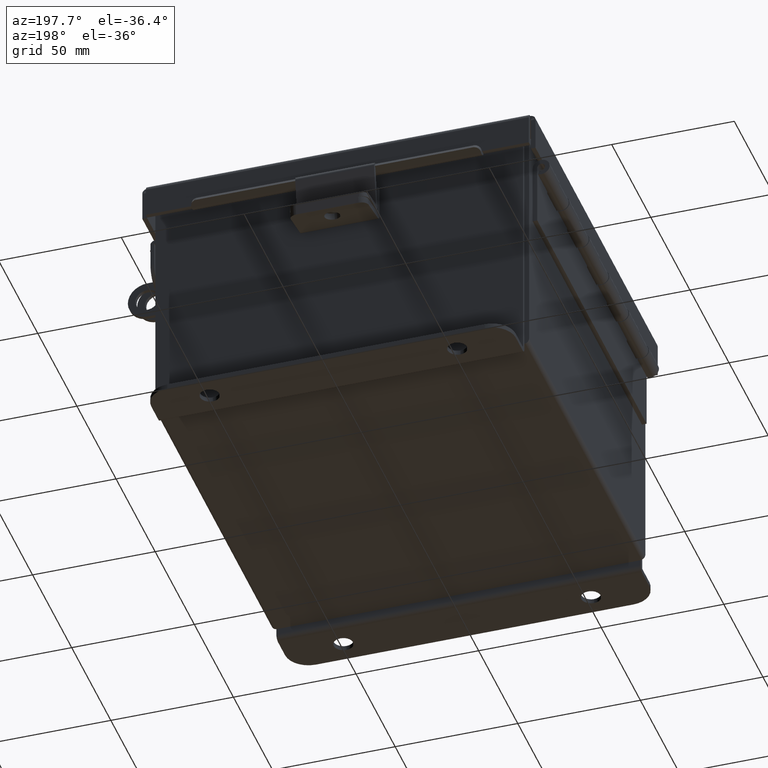
[diagram: clean part render]
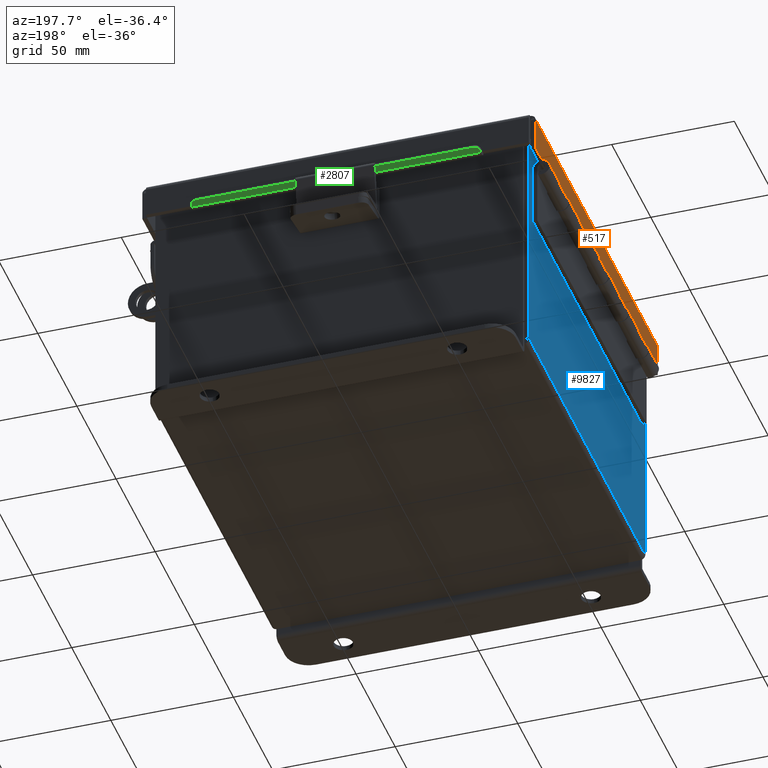
[diagram: same view with three faces highlighted in distinct colors, each labeled with its STEP entity id]
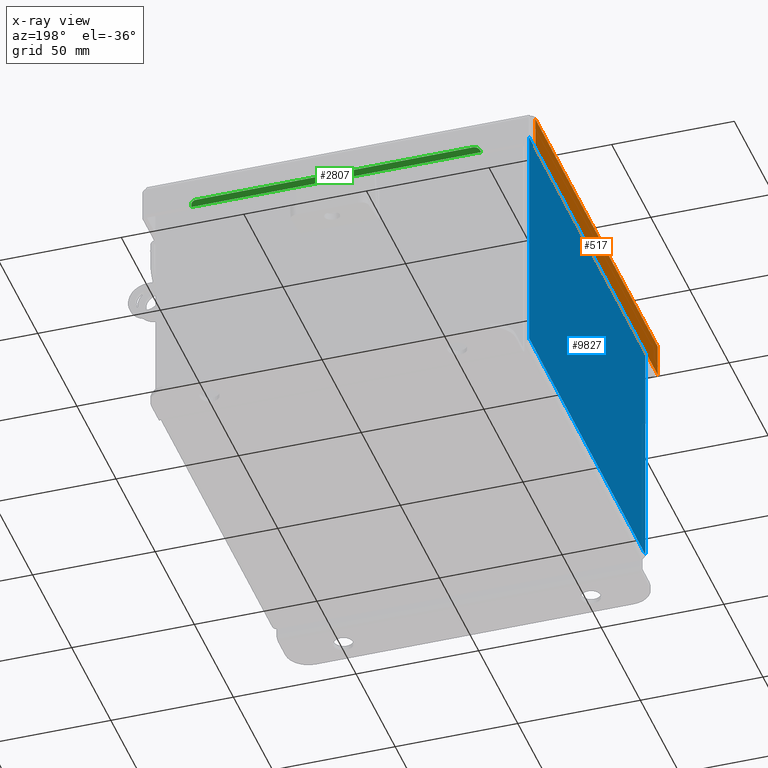
[diagram: x-ray of the same camera — body ghosted, the three highlighted faces saturated]
A machine part, auxiliary view with three faces highlighted in distinct colors.
The next image is the same camera in x-ray (body ghosted, the three faces saturated) — at least one of them is partly hidden behind the body in this view.
Their STEP definitions:

[orange] entity #517 — the highlighted planar face has unit normal (1, -0, 0).
#517 = ADVANCED_FACE ( 'NONE', ( #5081 ), #12026, .F. ) ;
#869 = VECTOR ( 'NONE', #3028, 39.37007874015748100 ) ;
#927 = LINE ( 'NONE', #14168, #12596 ) ;
#992 = CARTESIAN_POINT ( 'NONE',  ( 3.156249999999999600, -1.293110781001001200E-017, -1.279564226586486200E-014 ) ) ;
#1018 = DIRECTION ( 'NONE',  ( 3.971430846686188400E-015, -0.0000000000000000000, 1.000000000000000000 ) ) ;
#1600 = ORIENTED_EDGE ( 'NONE', *, *, #12415, .T. ) ;
#1800 = VERTEX_POINT ( 'NONE', #2647 ) ;
#2144 = ORIENTED_EDGE ( 'NONE', *, *, #14092, .F. ) ;
#2235 = CARTESIAN_POINT ( 'NONE',  ( 3.156249999999999600, 3.074478932188135600, -1.279564226586486200E-014 ) ) ;
#2307 = ORIENTED_EDGE ( 'NONE', *, *, #4333, .F. ) ;
#2366 = VECTOR ( 'NONE', #5727, 39.37007874015748100 ) ;
#2647 = CARTESIAN_POINT ( 'NONE',  ( 3.156250000000001800, 3.074478932188135600, 0.5503000000000000100 ) ) ;
#2652 = EDGE_CURVE ( 'NONE', #3122, #1800, #10734, .T. ) ;
#3028 = DIRECTION ( 'NONE',  ( 0.0000000000000000000, -1.000000000000000000, 0.0000000000000000000 ) ) ;
#3122 = VERTEX_POINT ( 'NONE', #3233 ) ;
#3233 = CARTESIAN_POINT ( 'NONE',  ( 3.156249999999999600, 3.074478932188135600, 0.01299999999999981200 ) ) ;
#3651 = CARTESIAN_POINT ( 'NONE',  ( 3.156250000000001800, -3.074478932188135600, 0.5503000000000000100 ) ) ;
#4110 = LINE ( 'NONE', #12875, #869 ) ;
#4333 = EDGE_CURVE ( 'NONE', #5039, #6707, #927, .T. ) ;
#5039 = VERTEX_POINT ( 'NONE', #5648 ) ;
#5081 = FACE_OUTER_BOUND ( 'NONE', #11561, .T. ) ;
#5454 = DIRECTION ( 'NONE',  ( -1.000000000000000000, 0.0000000000000000000, 3.971430846686188400E-015 ) ) ;
#5648 = CARTESIAN_POINT ( 'NONE',  ( 3.156249999999999600, -3.074478932188135600, 0.01299999999999981200 ) ) ;
#5727 = DIRECTION ( 'NONE',  ( -0.0000000000000000000, -1.000000000000000000, -0.0000000000000000000 ) ) ;
#6707 = VERTEX_POINT ( 'NONE', #3651 ) ;
#7172 = ORIENTED_EDGE ( 'NONE', *, *, #2652, .T. ) ;
#7817 = VECTOR ( 'NONE', #8820, 39.37007874015748100 ) ;
#8820 = DIRECTION ( 'NONE',  ( 3.971430846686188400E-015, 0.0000000000000000000, 1.000000000000000000 ) ) ;
#9023 = AXIS2_PLACEMENT_3D ( 'NONE', #992, #5454, #13134 ) ;
#10734 = LINE ( 'NONE', #2235, #7817 ) ;
#11202 = CARTESIAN_POINT ( 'NONE',  ( 3.156249999999999600, -3.156249999999998700, 0.01299999999999981200 ) ) ;
#11561 = EDGE_LOOP ( 'NONE', ( #2144, #7172, #1600, #2307 ) ) ;
#12026 = PLANE ( 'NONE',  #9023 ) ;
#12415 = EDGE_CURVE ( 'NONE', #1800, #6707, #4110, .T. ) ;
#12596 = VECTOR ( 'NONE', #1018, 39.37007874015748100 ) ;
#12875 = CARTESIAN_POINT ( 'NONE',  ( 3.156250000000001800, -1.293110781001001200E-017, 0.5503000000000000100 ) ) ;
#13134 = DIRECTION ( 'NONE',  ( 3.971430846686188400E-015, 0.0000000000000000000, 1.000000000000000000 ) ) ;
#14051 = LINE ( 'NONE', #11202, #2366 ) ;
#14092 = EDGE_CURVE ( 'NONE', #3122, #5039, #14051, .T. ) ;
#14168 = CARTESIAN_POINT ( 'NONE',  ( 3.156249999999999600, -3.074478932188135600, -2.966658842474588900E-016 ) ) ;

[blue] entity #9827 — the highlighted planar face has unit normal (1, 0, 0).
#372 = CARTESIAN_POINT ( 'NONE',  ( -2.999999999999999100, 2.925300000000000500, 0.01299999999999984700 ) ) ;
#581 = ORIENTED_EDGE ( 'NONE', *, *, #10491, .T. ) ;
#1605 = VERTEX_POINT ( 'NONE', #3429 ) ;
#2017 = CARTESIAN_POINT ( 'NONE',  ( -2.999999999999999100, 0.0000000000000000000, -1.090271878896850700E-014 ) ) ;
#2283 = VECTOR ( 'NONE', #7050, 39.37007874015748100 ) ;
#2460 = VECTOR ( 'NONE', #3388, 39.37007874015748100 ) ;
#3117 = LINE ( 'NONE', #372, #4476 ) ;
#3125 = PLANE ( 'NONE',  #5134 ) ;
#3204 = CARTESIAN_POINT ( 'NONE',  ( -3.000000000000012900, 2.925300000000000500, 3.837600000000000100 ) ) ;
#3388 = DIRECTION ( 'NONE',  ( 0.0000000000000000000, 1.000000000000000000, 0.0000000000000000000 ) ) ;
#3429 = CARTESIAN_POINT ( 'NONE',  ( -3.000000000000012900, -2.925299999999997300, 3.837600000000000100 ) ) ;
#3957 = LINE ( 'NONE', #10549, #6208 ) ;
#4205 = DIRECTION ( 'NONE',  ( 3.547301710985643000E-015, 0.0000000000000000000, -1.000000000000000000 ) ) ;
#4476 = VECTOR ( 'NONE', #10214, 39.37007874015748100 ) ;
#5053 = DIRECTION ( 'NONE',  ( 3.547301710985643000E-015, 0.0000000000000000000, -1.000000000000000000 ) ) ;
#5134 = AXIS2_PLACEMENT_3D ( 'NONE', #2017, #10810, #4205 ) ;
#5434 = ORIENTED_EDGE ( 'NONE', *, *, #10708, .T. ) ;
#5986 = EDGE_CURVE ( 'NONE', #11129, #7544, #3117, .T. ) ;
#6183 = EDGE_CURVE ( 'NONE', #10374, #7544, #3957, .T. ) ;
#6208 = VECTOR ( 'NONE', #5053, 39.37007874015748100 ) ;
#6665 = FACE_OUTER_BOUND ( 'NONE', #9712, .T. ) ;
#7050 = DIRECTION ( 'NONE',  ( -3.547301710985643000E-015, 2.837841368788514100E-016, 1.000000000000000000 ) ) ;
#7544 = VERTEX_POINT ( 'NONE', #11810 ) ;
#8105 = CARTESIAN_POINT ( 'NONE',  ( -2.999999999999999100, -2.925299999999999600, -1.007256505335680200E-014 ) ) ;
#8347 = CARTESIAN_POINT ( 'NONE',  ( -2.999999999999999100, -2.925299999999999100, 0.01300000000000039300 ) ) ;
#8919 = ORIENTED_EDGE ( 'NONE', *, *, #5986, .F. ) ;
#9712 = EDGE_LOOP ( 'NONE', ( #581, #12862, #8919, #5434 ) ) ;
#9827 = ADVANCED_FACE ( 'NONE', ( #6665 ), #3125, .F. ) ;
#10214 = DIRECTION ( 'NONE',  ( 3.312716323822492500E-031, 1.000000000000000000, -9.338693445678268600E-017 ) ) ;
#10374 = VERTEX_POINT ( 'NONE', #3204 ) ;
#10491 = EDGE_CURVE ( 'NONE', #1605, #10374, #13453, .T. ) ;
#10549 = CARTESIAN_POINT ( 'NONE',  ( -2.999999999999999100, 2.925300000000000500, -1.090271878896850700E-014 ) ) ;
#10708 = EDGE_CURVE ( 'NONE', #11129, #1605, #11388, .T. ) ;
#10810 = DIRECTION ( 'NONE',  ( 1.000000000000000000, 0.0000000000000000000, 3.547301710985643000E-015 ) ) ;
#11077 = CARTESIAN_POINT ( 'NONE',  ( -3.000000000000012900, -2.925299999999998200, 3.837600000000000100 ) ) ;
#11129 = VERTEX_POINT ( 'NONE', #8347 ) ;
#11388 = LINE ( 'NONE', #8105, #2283 ) ;
#11810 = CARTESIAN_POINT ( 'NONE',  ( -2.999999999999999100, 2.925300000000000500, 0.01299999999999987100 ) ) ;
#12862 = ORIENTED_EDGE ( 'NONE', *, *, #6183, .T. ) ;
#13453 = LINE ( 'NONE', #11077, #2460 ) ;

[green] entity #2807 — the highlighted planar face has unit normal (-0, -0.5, 0.866).
#468 = DIRECTION ( 'NONE',  ( -0.0000000000000000000, 0.8660254037844373800, -0.5000000000000023300 ) ) ;
#478 = VERTEX_POINT ( 'NONE', #9782 ) ;
#632 = DIRECTION ( 'NONE',  ( -1.000000000000000000, -0.0000000000000000000, -1.469064720180456100E-017 ) ) ;
#671 = EDGE_CURVE ( 'NONE', #4603, #7324, #6299, .T. ) ;
#679 = CARTESIAN_POINT ( 'NONE',  ( -2.324478932188136100, 3.211453810567667800, 0.5416841953253948000 ) ) ;
#769 = VECTOR ( 'NONE', #632, 39.37007874015748100 ) ;
#865 = CARTESIAN_POINT ( 'NONE',  ( 3.760465687931087800E-016, 3.207100000000001800, 0.5441978690286376500 ) ) ;
#993 = ORIENTED_EDGE ( 'NONE', *, *, #671, .F. ) ;
#1698 = CARTESIAN_POINT ( 'NONE',  ( -2.616525028797013900E-017, 1.037419589632083200, 1.796863438010017000 ) ) ;
#2170 = CARTESIAN_POINT ( 'NONE',  ( -2.224478932188136400, 3.211453810567667800, 0.5416841953253949100 ) ) ;
#2318 = ORIENTED_EDGE ( 'NONE', *, *, #8037, .T. ) ;
#2635 = CARTESIAN_POINT ( 'NONE',  ( -2.324478932188134300, 3.207100000000003200, 0.5441978690286365400 ) ) ;
#2807 = ADVANCED_FACE ( 'NONE', ( #8696 ), #10494, .F. ) ;
#2831 = CARTESIAN_POINT ( 'NONE',  ( -2.324478932188136100, 3.298056350946111600, 0.4916841953253947600 ) ) ;
#2899 = CIRCLE ( 'NONE', #12022, 0.09999999999999983900 ) ;
#2906 = ORIENTED_EDGE ( 'NONE', *, *, #7321, .T. ) ;
#3270 = DIRECTION ( 'NONE',  ( 0.0000000000000000000, 0.8660254037844372600, -0.5000000000000023300 ) ) ;
#3519 = EDGE_CURVE ( 'NONE', #478, #10695, #12111, .T. ) ;
#3907 = DIRECTION ( 'NONE',  ( 1.272247367479751900E-017, -0.5000000000000012200, -0.8660254037844379300 ) ) ;
#4201 = EDGE_CURVE ( 'NONE', #9651, #7324, #4861, .T. ) ;
#4603 = VERTEX_POINT ( 'NONE', #9271 ) ;
#4861 = LINE ( 'NONE', #5182, #7810 ) ;
#5182 = CARTESIAN_POINT ( 'NONE',  ( -2.324478932188136100, 3.193600000000001800, 0.5519920976626975200 ) ) ;
#5955 = DIRECTION ( 'NONE',  ( -1.272247367479751900E-017, 0.5000000000000012200, 0.8660254037844379300 ) ) ;
#6299 = LINE ( 'NONE', #865, #8872 ) ;
#6509 = VERTEX_POINT ( 'NONE', #9979 ) ;
#6607 = ORIENTED_EDGE ( 'NONE', *, *, #3519, .T. ) ;
#6687 = VECTOR ( 'NONE', #468, 39.37007874015748900 ) ;
#7321 = EDGE_CURVE ( 'NONE', #6509, #478, #2899, .T. ) ;
#7324 = VERTEX_POINT ( 'NONE', #2635 ) ;
#7451 = DIRECTION ( 'NONE',  ( -1.000000000000000000, 1.326725410726186400E-016, -9.128917450415287500E-017 ) ) ;
#7810 = VECTOR ( 'NONE', #13969, 39.37007874015748100 ) ;
#8037 = EDGE_CURVE ( 'NONE', #4603, #6509, #9957, .T. ) ;
#8160 = CARTESIAN_POINT ( 'NONE',  ( 2.324478932188135200, 3.298056350946111600, 0.4916841953253948100 ) ) ;
#8696 = FACE_OUTER_BOUND ( 'NONE', #13748, .T. ) ;
#8872 = VECTOR ( 'NONE', #7451, 39.37007874015748100 ) ;
#9271 = CARTESIAN_POINT ( 'NONE',  ( 2.324478932188135200, 3.207100000000001400, 0.5441978690286379800 ) ) ;
#9651 = VERTEX_POINT ( 'NONE', #679 ) ;
#9782 = CARTESIAN_POINT ( 'NONE',  ( 2.224478932188135100, 3.298056350946111600, 0.4916841953253948100 ) ) ;
#9789 = AXIS2_PLACEMENT_3D ( 'NONE', #1698, #3907, #11589 ) ;
#9867 = DIRECTION ( 'NONE',  ( -1.272247367479751900E-017, 0.5000000000000012200, 0.8660254037844379300 ) ) ;
#9957 = LINE ( 'NONE', #8160, #6687 ) ;
#9979 = CARTESIAN_POINT ( 'NONE',  ( 2.324478932188135200, 3.211453810567667800, 0.5416841953253950200 ) ) ;
#10107 = ORIENTED_EDGE ( 'NONE', *, *, #4201, .T. ) ;
#10310 = CARTESIAN_POINT ( 'NONE',  ( -2.224478932188136400, 3.298056350946111600, 0.4916841953253947600 ) ) ;
#10494 = PLANE ( 'NONE',  #9789 ) ;
#10695 = VERTEX_POINT ( 'NONE', #10310 ) ;
#10832 = CIRCLE ( 'NONE', #11713, 0.09999999999999983900 ) ;
#11589 = DIRECTION ( 'NONE',  ( 0.0000000000000000000, 0.8660254037844379300, -0.5000000000000012200 ) ) ;
#11713 = AXIS2_PLACEMENT_3D ( 'NONE', #2170, #9867, #3270 ) ;
#12022 = AXIS2_PLACEMENT_3D ( 'NONE', #12529, #5955, #13630 ) ;
#12111 = LINE ( 'NONE', #2831, #769 ) ;
#12529 = CARTESIAN_POINT ( 'NONE',  ( 2.224478932188135100, 3.211453810567667800, 0.5416841953253948000 ) ) ;
#12544 = EDGE_CURVE ( 'NONE', #10695, #9651, #10832, .T. ) ;
#13630 = DIRECTION ( 'NONE',  ( 5.463695987328535100E-015, 0.8660254037844372600, -0.5000000000000023300 ) ) ;
#13748 = EDGE_LOOP ( 'NONE', ( #6607, #14187, #10107, #993, #2318, #2906 ) ) ;
#13969 = DIRECTION ( 'NONE',  ( -0.0000000000000000000, -0.8660254037844379300, 0.5000000000000012200 ) ) ;
#14187 = ORIENTED_EDGE ( 'NONE', *, *, #12544, .T. ) ;